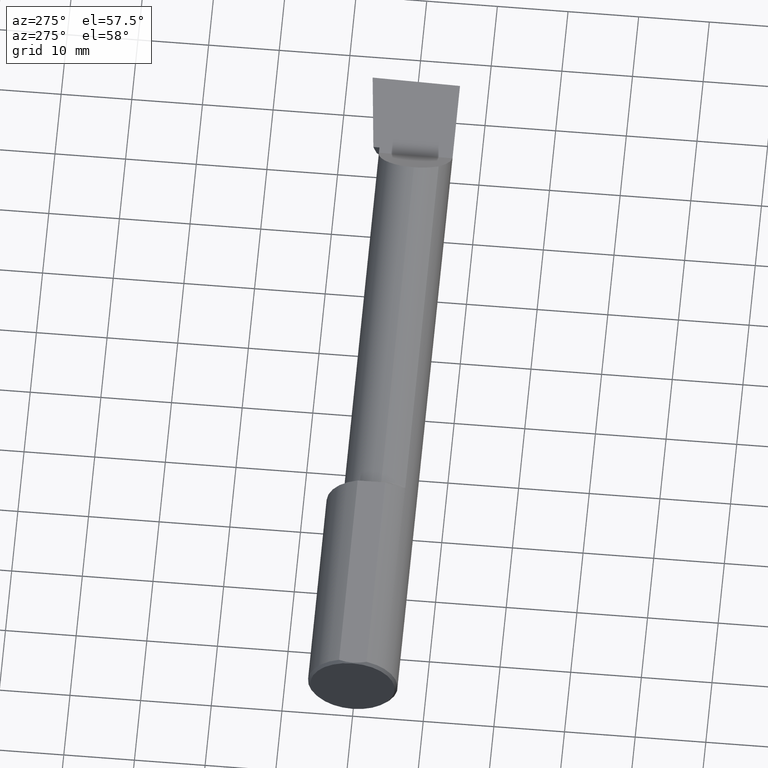
[diagram: clean part render]
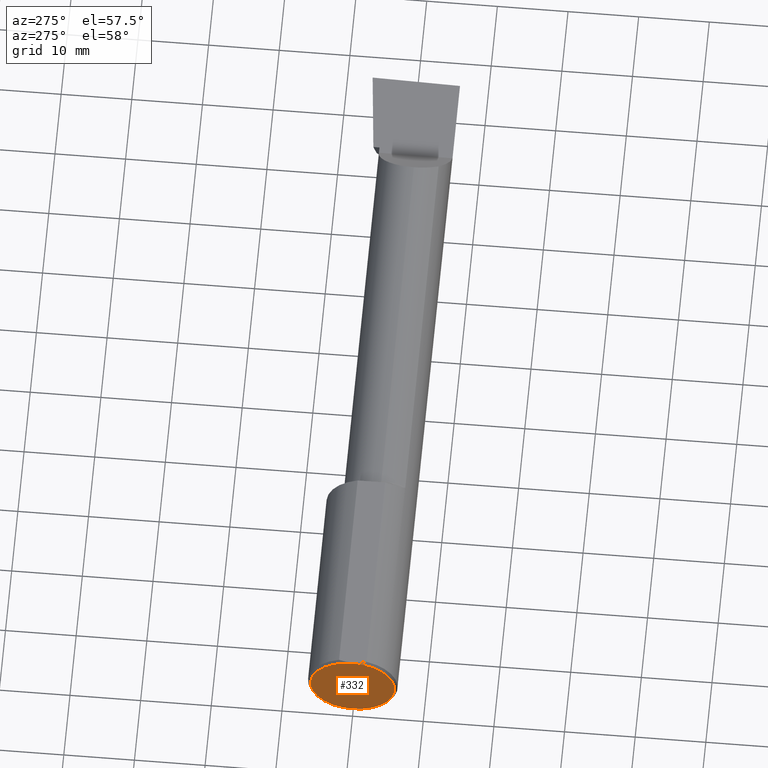
[diagram: same view with one face highlighted and labeled with its STEP entity id]
A machine part, auxiliary view. The second image highlights one B-rep face of the part: STEP entity #332.
In plain terms, the highlighted planar face has unit normal (1, 0, 0).
Its self-contained STEP definition (entity closure, byte-faithful):
#42 = DIRECTION ( 'NONE',  ( -1.000000000000000000, -0.0000000000000000000, -0.0000000000000000000 ) ) ;
#259 = EDGE_CURVE ( 'NONE', #605, #517, #584, .T. ) ;
#315 = AXIS2_PLACEMENT_3D ( 'NONE', #757, #401, #696 ) ;
#318 = ORIENTED_EDGE ( 'NONE', *, *, #259, .T. ) ;
#332 = ADVANCED_FACE ( 'NONE', ( #488 ), #651, .F. ) ;
#354 = EDGE_LOOP ( 'NONE', ( #318, #614 ) ) ;
#369 = EDGE_CURVE ( 'NONE', #517, #605, #631, .T. ) ;
#396 = CARTESIAN_POINT ( 'NONE',  ( 0.0000000000000000000, 0.0000000000000000000, 0.0000000000000000000 ) ) ;
#401 = DIRECTION ( 'NONE',  ( -1.000000000000000000, -0.0000000000000000000, -0.0000000000000000000 ) ) ;
#488 = FACE_OUTER_BOUND ( 'NONE', #354, .T. ) ;
#517 = VERTEX_POINT ( 'NONE', #575 ) ;
#530 = DIRECTION ( 'NONE',  ( 1.000000000000000000, 0.0000000000000000000, 0.0000000000000000000 ) ) ;
#575 = CARTESIAN_POINT ( 'NONE',  ( 0.0000000000000000000, 2.967931517733664878E-17, 0.2348499999999996424 ) ) ;
#584 = CIRCLE ( 'NONE', #315, 0.2348499999999996424 ) ;
#605 = VERTEX_POINT ( 'NONE', #659 ) ;
#614 = ORIENTED_EDGE ( 'NONE', *, *, #369, .T. ) ;
#631 = CIRCLE ( 'NONE', #707, 0.2348499999999996424 ) ;
#651 = PLANE ( 'NONE',  #744 ) ;
#659 = CARTESIAN_POINT ( 'NONE',  ( 0.0000000000000000000, 0.0000000000000000000, -0.2348499999999996424 ) ) ;
#694 = CARTESIAN_POINT ( 'NONE',  ( 0.0000000000000000000, 0.0000000000000000000, 0.0000000000000000000 ) ) ;
#696 = DIRECTION ( 'NONE',  ( 0.0000000000000000000, 0.0000000000000000000, 1.000000000000000000 ) ) ;
#705 = DIRECTION ( 'NONE',  ( 0.0000000000000000000, 0.0000000000000000000, -1.000000000000000000 ) ) ;
#707 = AXIS2_PLACEMENT_3D ( 'NONE', #396, #42, #746 ) ;
#744 = AXIS2_PLACEMENT_3D ( 'NONE', #694, #530, #705 ) ;
#746 = DIRECTION ( 'NONE',  ( 0.0000000000000000000, 0.0000000000000000000, 1.000000000000000000 ) ) ;
#757 = CARTESIAN_POINT ( 'NONE',  ( 0.0000000000000000000, 0.0000000000000000000, 0.0000000000000000000 ) ) ;